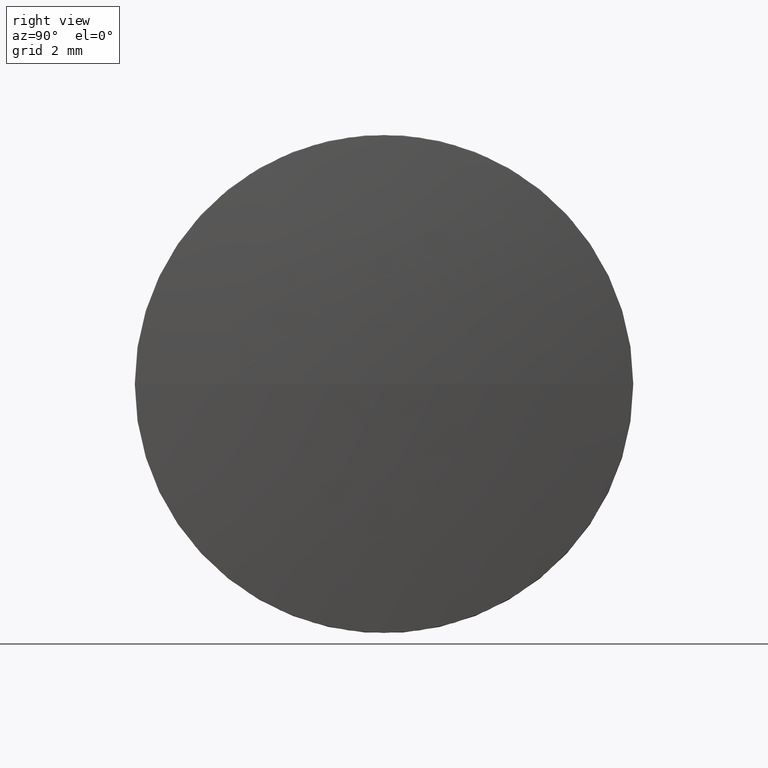
[diagram: clean part render]
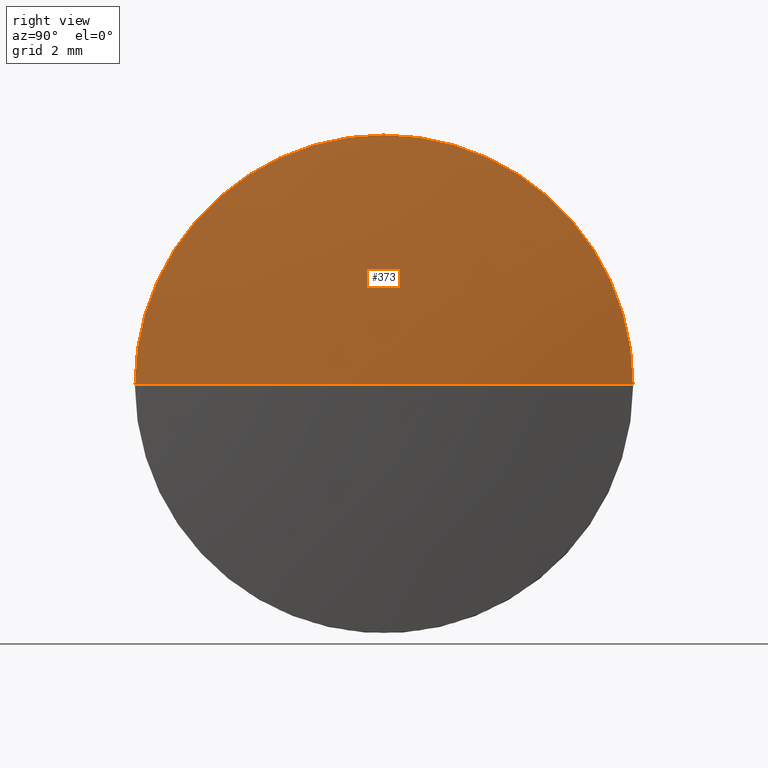
[diagram: same view with one face highlighted and labeled with its STEP entity id]
A machine part, right view. The second image highlights one B-rep face of the part: STEP entity #373.
In plain terms, the highlighted spherical surface has radius 68.32 mm.
Its self-contained STEP definition (entity closure, byte-faithful):
#14 = ORIENTED_EDGE ( 'NONE', *, *, #154, .F. ) ;
#19 = ORIENTED_EDGE ( 'NONE', *, *, #594, .F. ) ;
#37 = FACE_OUTER_BOUND ( 'NONE', #620, .T. ) ;
#44 = CARTESIAN_POINT ( 'NONE',  ( -0.2951002634660471191, 0.000000000000000000, 0.000000000000000000 ) ) ;
#73 = CARTESIAN_POINT ( 'NONE',  ( -68.31999999999999318, 0.000000000000000000, 0.000000000000000000 ) ) ;
#82 = CARTESIAN_POINT ( 'NONE',  ( -0.2951002634660471191, 0.000000000000000000, 0.000000000000000000 ) ) ;
#93 = DIRECTION ( 'NONE',  ( 0.000000000000000000, 0.000000000000000000, 1.000000000000000000 ) ) ;
#99 = AXIS2_PLACEMENT_3D ( 'NONE', #336, #122, #169 ) ;
#120 = CARTESIAN_POINT ( 'NONE',  ( 0.000000000000000000, 4.183393465887357773E-15, 0.000000000000000000 ) ) ;
#122 = DIRECTION ( 'NONE',  ( -0.000000000000000000, 0.000000000000000000, -1.000000000000000000 ) ) ;
#154 = EDGE_CURVE ( 'NONE', #458, #407, #443, .T. ) ;
#169 = DIRECTION ( 'NONE',  ( 0.000000000000000000, 1.000000000000000000, 0.000000000000000000 ) ) ;
#209 = CARTESIAN_POINT ( 'NONE',  ( -0.2951002634660471191, -6.343139272828758557, -7.768105207015609228E-16 ) ) ;
#216 = AXIS2_PLACEMENT_3D ( 'NONE', #483, #422, #623 ) ;
#246 = CIRCLE ( 'NONE', #612, 6.343139272828748787 ) ;
#247 = AXIS2_PLACEMENT_3D ( 'NONE', #73, #376, #567 ) ;
#298 = EDGE_CURVE ( 'NONE', #416, #407, #425, .T. ) ;
#322 = VERTEX_POINT ( 'NONE', #209 ) ;
#324 = SPHERICAL_SURFACE ( 'NONE', #99, 68.31999999999999318 ) ;
#328 = CARTESIAN_POINT ( 'NONE',  ( -0.2951002634660471191, 0.000000000000000000, 6.343139272828748787 ) ) ;
#336 = CARTESIAN_POINT ( 'NONE',  ( -68.31999999999999318, 0.000000000000000000, 0.000000000000000000 ) ) ;
#346 = DIRECTION ( 'NONE',  ( -1.000000000000000000, -0.000000000000000000, -0.000000000000000000 ) ) ;
#373 = ADVANCED_FACE ( 'NONE', ( #37 ), #324, .T. ) ;
#376 = DIRECTION ( 'NONE',  ( -0.000000000000000000, 0.000000000000000000, 1.000000000000000000 ) ) ;
#407 = VERTEX_POINT ( 'NONE', #431 ) ;
#416 = VERTEX_POINT ( 'NONE', #120 ) ;
#422 = DIRECTION ( 'NONE',  ( 0.000000000000000000, 1.224646799147353207E-16, -1.000000000000000000 ) ) ;
#425 = CIRCLE ( 'NONE', #247, 68.31999999999999318 ) ;
#431 = CARTESIAN_POINT ( 'NONE',  ( -0.2951002634660471191, 6.343139272828758557, 0.000000000000000000 ) ) ;
#443 = CIRCLE ( 'NONE', #585, 6.343139272828748787 ) ;
#458 = VERTEX_POINT ( 'NONE', #328 ) ;
#483 = CARTESIAN_POINT ( 'NONE',  ( -68.31999999999999318, 0.000000000000000000, 0.000000000000000000 ) ) ;
#548 = ORIENTED_EDGE ( 'NONE', *, *, #592, .F. ) ;
#567 = DIRECTION ( 'NONE',  ( 1.000000000000000000, 0.000000000000000000, 0.000000000000000000 ) ) ;
#572 = DIRECTION ( 'NONE',  ( 0.000000000000000000, 0.000000000000000000, 1.000000000000000000 ) ) ;
#585 = AXIS2_PLACEMENT_3D ( 'NONE', #82, #629, #572 ) ;
#592 = EDGE_CURVE ( 'NONE', #416, #322, #598, .T. ) ;
#594 = EDGE_CURVE ( 'NONE', #322, #458, #246, .T. ) ;
#598 = CIRCLE ( 'NONE', #216, 68.31999999999999318 ) ;
#612 = AXIS2_PLACEMENT_3D ( 'NONE', #44, #346, #93 ) ;
#620 = EDGE_LOOP ( 'NONE', ( #548, #624, #14, #19 ) ) ;
#623 = DIRECTION ( 'NONE',  ( 0.000000000000000000, 1.000000000000000000, 1.224646799147353207E-16 ) ) ;
#624 = ORIENTED_EDGE ( 'NONE', *, *, #298, .T. ) ;
#629 = DIRECTION ( 'NONE',  ( -1.000000000000000000, -0.000000000000000000, -0.000000000000000000 ) ) ;